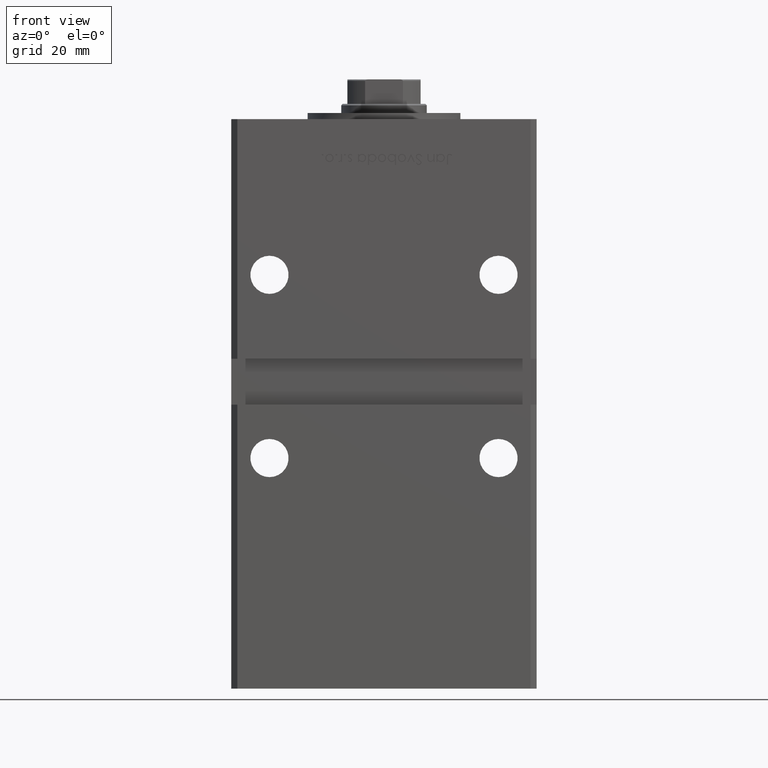
[diagram: clean part render]
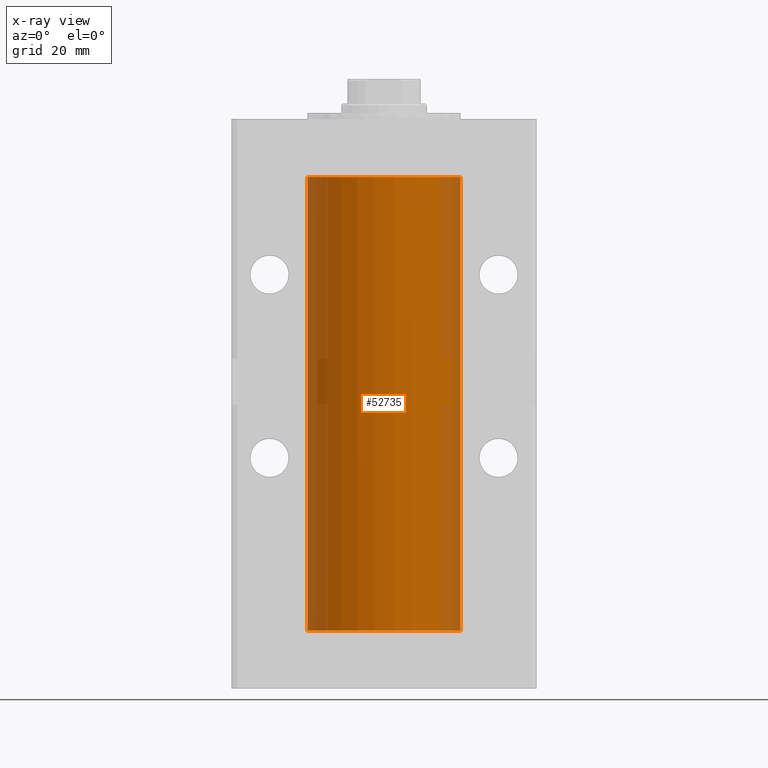
[diagram: x-ray — body ghosted, one internal face saturated and labeled with its STEP entity id]
A machine part, front view, then the same camera in x-ray: the body is ghosted and one INTERNAL B-rep face — a face not visible from any outside direction — is saturated and labeled: STEP entity #52735.
In plain terms, the highlighted cylindrical surface (partial cylindrical patch) has radius 25 mm, axis along (-0, -0, -1).
Its self-contained STEP definition (entity closure, byte-faithful):
#824 = EDGE_CURVE ( 'NONE', #2201, #34998, #21886, .T. ) ;
#1719 = VERTEX_POINT ( 'NONE', #16140 ) ;
#2201 = VERTEX_POINT ( 'NONE', #7849 ) ;
#2663 = VECTOR ( 'NONE', #27092, 1000.000000000000000 ) ;
#4685 = AXIS2_PLACEMENT_3D ( 'NONE', #31463, #18299, #47588 ) ;
#6387 = LINE ( 'NONE', #48049, #2663 ) ;
#6893 = CARTESIAN_POINT ( 'NONE',  ( 25.00000000000000000, 3.061616997868383043E-15, 0.000000000000000000 ) ) ;
#7849 = CARTESIAN_POINT ( 'NONE',  ( -25.00000000000000000, 0.000000000000000000, 0.000000000000000000 ) ) ;
#14973 = CARTESIAN_POINT ( 'NONE',  ( -25.00000000000000000, 0.000000000000000000, 148.5000000000000000 ) ) ;
#16140 = CARTESIAN_POINT ( 'NONE',  ( 25.00000000000000000, 3.061616997868383043E-15, 148.5000000000000000 ) ) ;
#16920 = DIRECTION ( 'NONE',  ( -0.000000000000000000, -0.000000000000000000, -1.000000000000000000 ) ) ;
#17199 = CIRCLE ( 'NONE', #30104, 25.00000000000000000 ) ;
#17533 = DIRECTION ( 'NONE',  ( -0.000000000000000000, -0.000000000000000000, -1.000000000000000000 ) ) ;
#18299 = DIRECTION ( 'NONE',  ( -0.000000000000000000, 0.000000000000000000, 1.000000000000000000 ) ) ;
#20687 = FACE_OUTER_BOUND ( 'NONE', #46772, .T. ) ;
#20973 = ORIENTED_EDGE ( 'NONE', *, *, #29668, .F. ) ;
#21886 = CIRCLE ( 'NONE', #4685, 25.00000000000000000 ) ;
#23171 = EDGE_CURVE ( 'NONE', #34474, #1719, #17199, .T. ) ;
#25120 = CARTESIAN_POINT ( 'NONE',  ( 0.000000000000000000, 0.000000000000000000, 148.5000000000000000 ) ) ;
#26414 = LINE ( 'NONE', #42265, #31466 ) ;
#26632 = ORIENTED_EDGE ( 'NONE', *, *, #36045, .T. ) ;
#27092 = DIRECTION ( 'NONE',  ( -0.000000000000000000, -0.000000000000000000, -1.000000000000000000 ) ) ;
#29668 = EDGE_CURVE ( 'NONE', #34474, #2201, #6387, .T. ) ;
#30104 = AXIS2_PLACEMENT_3D ( 'NONE', #25120, #41498, #33461 ) ;
#31463 = CARTESIAN_POINT ( 'NONE',  ( 0.000000000000000000, 0.000000000000000000, 0.000000000000000000 ) ) ;
#31466 = VECTOR ( 'NONE', #17533, 1000.000000000000000 ) ;
#33326 = DIRECTION ( 'NONE',  ( -1.000000000000000000, 0.000000000000000000, 0.000000000000000000 ) ) ;
#33461 = DIRECTION ( 'NONE',  ( 1.000000000000000000, 0.000000000000000000, 0.000000000000000000 ) ) ;
#34407 = ORIENTED_EDGE ( 'NONE', *, *, #23171, .T. ) ;
#34474 = VERTEX_POINT ( 'NONE', #14973 ) ;
#34998 = VERTEX_POINT ( 'NONE', #6893 ) ;
#36045 = EDGE_CURVE ( 'NONE', #1719, #34998, #26414, .T. ) ;
#37102 = CARTESIAN_POINT ( 'NONE',  ( 0.000000000000000000, 0.000000000000000000, 148.5000000000000000 ) ) ;
#37995 = ORIENTED_EDGE ( 'NONE', *, *, #824, .F. ) ;
#40417 = AXIS2_PLACEMENT_3D ( 'NONE', #37102, #16920, #33326 ) ;
#40585 = CYLINDRICAL_SURFACE ( 'NONE', #40417, 25.00000000000000000 ) ;
#41498 = DIRECTION ( 'NONE',  ( -0.000000000000000000, 0.000000000000000000, 1.000000000000000000 ) ) ;
#42265 = CARTESIAN_POINT ( 'NONE',  ( 25.00000000000000000, 3.061616997868383043E-15, 148.5000000000000000 ) ) ;
#46772 = EDGE_LOOP ( 'NONE', ( #34407, #26632, #37995, #20973 ) ) ;
#47588 = DIRECTION ( 'NONE',  ( 1.000000000000000000, 0.000000000000000000, 0.000000000000000000 ) ) ;
#48049 = CARTESIAN_POINT ( 'NONE',  ( -25.00000000000000000, 0.000000000000000000, 148.5000000000000000 ) ) ;
#52735 = ADVANCED_FACE ( 'NONE', ( #20687 ), #40585, .F. ) ;